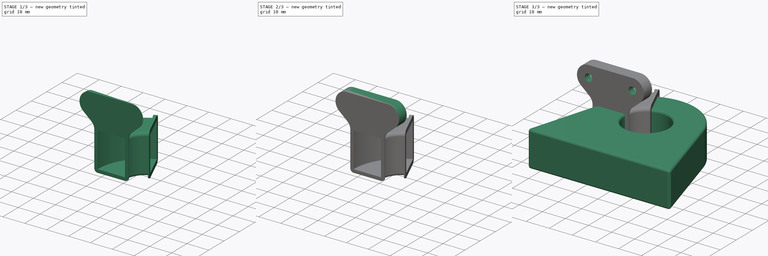
[diagram: build sequence overview — one tinted view per stage of 3, left to right]
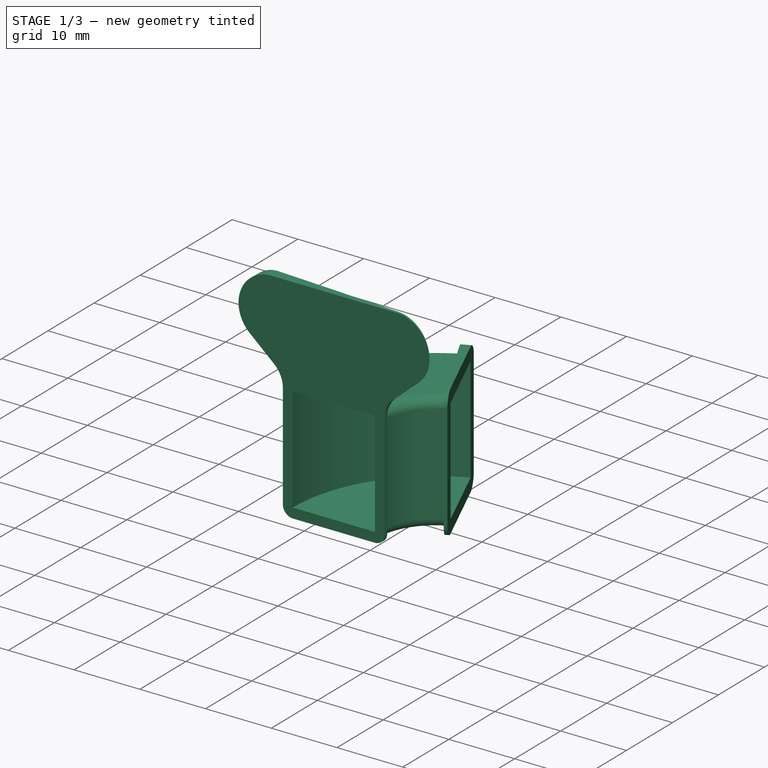
[diagram: stage 1 of 3 — iso view after this stage's code; geometry added in this stage tinted green]
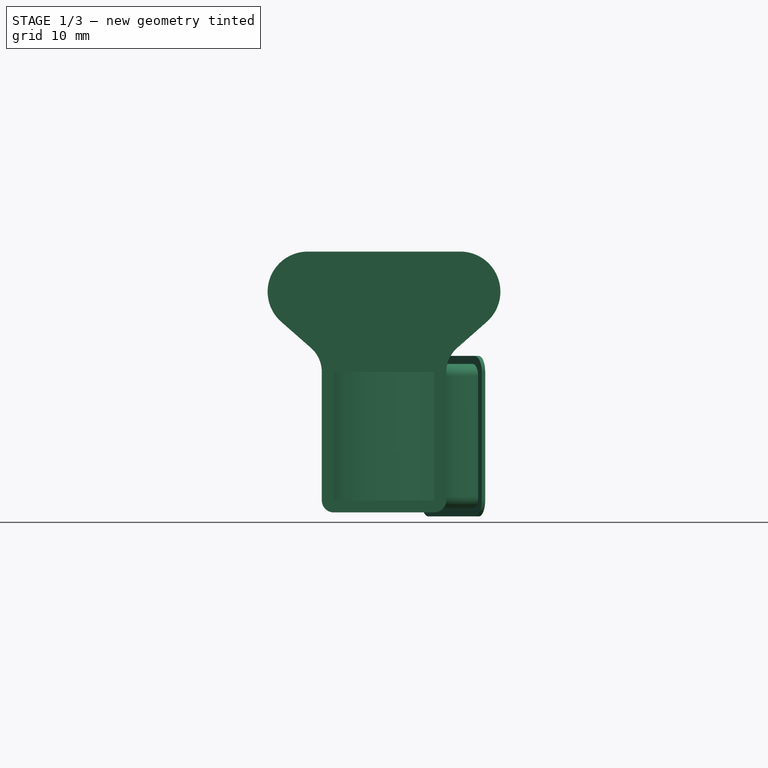
[diagram: stage 1 of 3 — front view after this stage's code; geometry added in this stage tinted green]
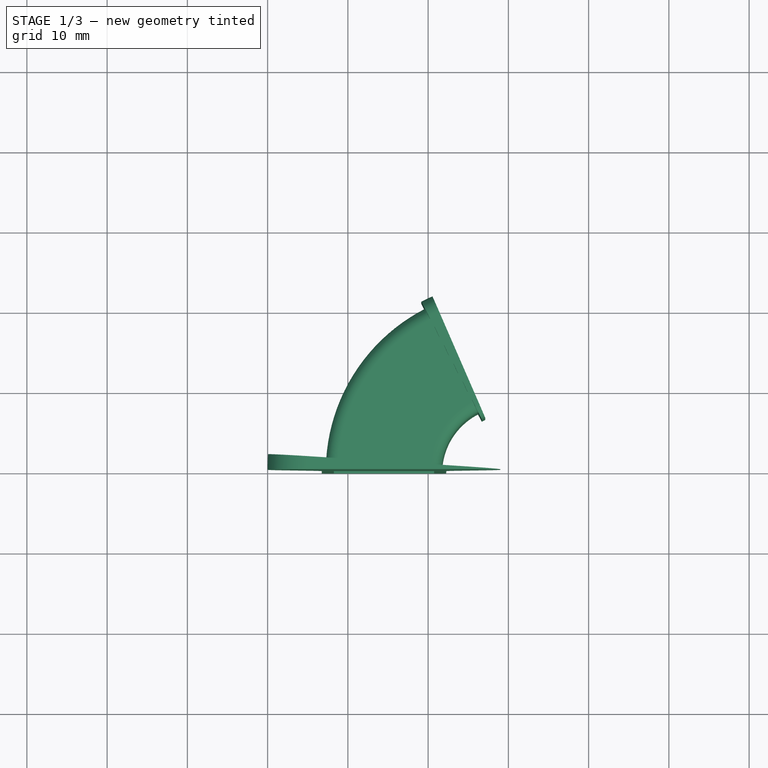
[diagram: stage 1 of 3 — top view after this stage's code; geometry added in this stage tinted green]
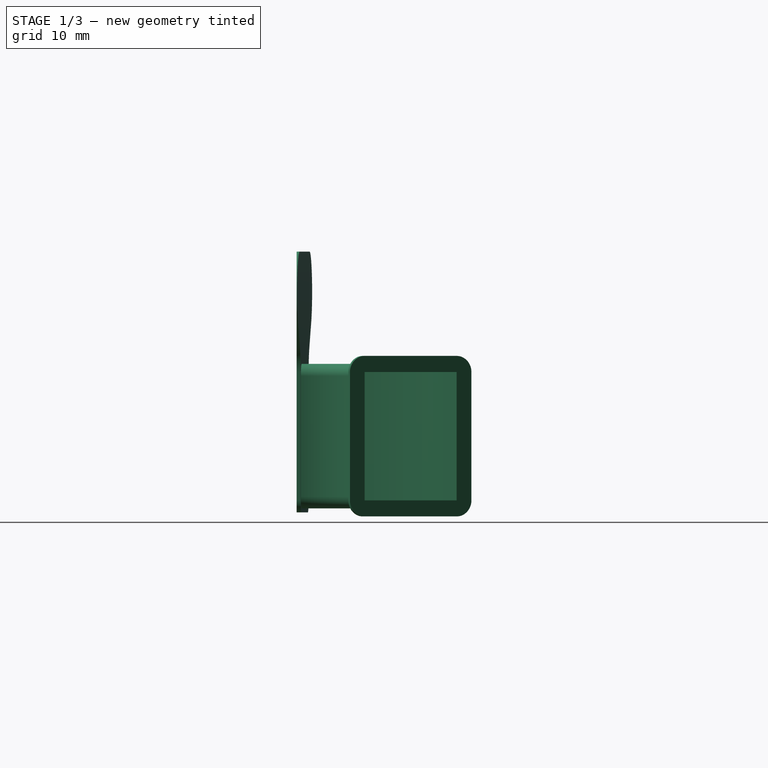
[diagram: stage 1 of 3 — right view after this stage's code; geometry added in this stage tinted green]
FCSTD DOCUMENT  (FreeCAD 1.0R39285 (Git))
Label: current_clamp_coil
License: All rights reserved
LicenseURL: https://en.wikipedia.org/wiki/All_rights_reserved
objects: Sketcher::SketchObject×10, App::Part×3, PartDesign::AdditivePipe×3, PartDesign::Pad×2, PartDesign::Body×2, Part::Feature×2, PartDesign::Pocket×2, PartDesign::Fillet×1
note: 48 computed .brp shape members not serialized (recipe doc carries the construction recipe); baked Part::Feature solids carry a one-line shape summary decoded from their .brp

FEATURE [PartDesign::Body] Body
  AllowCompound = false
  Group = -> [Sketch,Pad,Fillet]
  Origin = -> Origin002
  Tip = -> Fillet
FEATURE [App::Part] Part  label="current_clamp"
  Group = -> [Body]
  Origin = -> Origin
FEATURE [Sketcher::SketchObject] Sketch001  label="SketchBodyDir"
  ArcFitTolerance = 1e-06
  AttachmentSupport = -> [XY_Plane003]
  FullyConstrained = true
  MakeInternals = false
  MapMode = 5
  expr: Constraints[2] = (19 + 12) / 2
  sketch-geometry (1):
    g0: ArcOfCircle CenterX=0 CenterY=0 CenterZ=0 NormalX=0 NormalY=0 NormalZ=1 AngleXU=0 Radius=15.5 StartAngle=1.98072 EndAngle=3.14159
  constraints (4):
    c: Coincident(g0,g-1)
    c: PointOnObject(g0,g-1)
    c: Radius(g0) = 15.5
    c: Distance(g0,g0) = 17
FEATURE [Sketcher::SketchObject] Sketch002  label="SketchBody"
  ArcFitTolerance = 1e-06
  AttachmentSupport = -> [XZ_Plane003]
  ExternalGeometry = -> [Sketch001]
  FullyConstrained = true
  MakeInternals = false
  MapMode = 5
  Placement = pos=(0,0,0) rot=(1,0,0;1.5708rad)
  sketch-geometry (20):
    g0: LineSegment StartX=-21.75 StartY=-8 StartZ=0 EndX=-9.25 EndY=-8 EndZ=0
    g1: LineSegment StartX=-9.25 StartY=-8 StartZ=0 EndX=-9.25 EndY=8 EndZ=0
    g2: LineSegment StartX=-9.25 StartY=8 StartZ=0 EndX=-21.75 EndY=8 EndZ=0
    g3: LineSegment StartX=-21.75 StartY=8 StartZ=0 EndX=-21.75 EndY=-8 EndZ=0
    g4: GeomPoint [constr] X=-15.5 Y=0 Z=0
    g5: GeomPoint [constr] X=-15.5 Y=0 Z=0
    g6: LineSegment StartX=-22.75 StartY=7.5 StartZ=0 EndX=-22.75 EndY=-7.5 EndZ=0
    g7: LineSegment StartX=-21.25 StartY=-9 StartZ=0 EndX=-9.75 EndY=-9 EndZ=0
    g8: LineSegment StartX=-8.25 StartY=-7.5 StartZ=0 EndX=-8.25 EndY=7.5 EndZ=0
    g9: LineSegment StartX=-9.75 StartY=9 StartZ=0 EndX=-21.25 EndY=9 EndZ=0
    g10: ArcOfCircle CenterX=-21.25 CenterY=7.5 CenterZ=0 NormalX=0 NormalY=0 NormalZ=1 AngleXU=0 Radius=1.5 StartAngle=1.5708 EndAngle=3.14159
    g11: ArcOfCircle CenterX=-21.25 CenterY=-7.5 CenterZ=0 NormalX=0 NormalY=0 NormalZ=1 AngleXU=0 Radius=1.5 StartAngle=3.14159 EndAngle=4.71239
    g12: ArcOfCircle CenterX=-9.75 CenterY=-7.5 CenterZ=0 NormalX=0 NormalY=0 NormalZ=1 AngleXU=0 Radius=1.5 StartAngle=4.71239 EndAngle=6.28319
    g13: ArcOfCircle CenterX=-9.75 CenterY=7.5 CenterZ=0 NormalX=0 NormalY=0 NormalZ=1 AngleXU=0 Radius=1.5 StartAngle=0 EndAngle=1.5708
    g14: GeomPoint [constr] X=-22.75 Y=9 Z=0
    g15: GeomPoint [constr] X=-8.25 Y=-9 Z=0
    g16: LineSegment [constr] StartX=-21.25 StartY=-9 StartZ=0 EndX=-21.25 EndY=-8 EndZ=0
    g17: LineSegment [constr] StartX=-22.75 StartY=-7.5 StartZ=0 EndX=-21.75 EndY=-7.5 EndZ=0
    g18: LineSegment [constr] StartX=-9.75 StartY=9 StartZ=0 EndX=-9.75 EndY=8 EndZ=0
    g19: LineSegment [constr] StartX=-8.25 StartY=7.5 StartZ=0 EndX=-9.25 EndY=7.5 EndZ=0
  constraints (49):
    c: Coincident(g0,g1)
    c: Coincident(g1,g2)
    c: Coincident(g2,g3)
    c: Coincident(g3,g0)
    c: Horizontal(g0)
    c: Horizontal(g2)
    c: Vertical(g1)
    c: Vertical(g3)
    c: Symmetric(g2,g0,g4)
    c: Distance(g1,g3) = 12.5
    c: Distance(g0,g2) = 16
    c: Coincident(g4,g-3)
    c: Coincident(g5,g4)
    c: Tangent(g6,g10) = -1.5708
    c: Tangent(g6,g11) = -1.5708
    c: Tangent(g7,g11) = -1.5708
    c: Tangent(g7,g12) = -1.5708
    c: Tangent(g8,g12) = -1.5708
    c: Tangent(g8,g13) = -1.5708
    c: Tangent(g9,g13) = -1.5708
    c: Tangent(g9,g10) = -1.5708
    c: Vertical(g6)
    c: Vertical(g8)
    c: Horizontal(g7)
    c: Horizontal(g9)
    c: Equal(g10,g11)
    c: Equal(g11,g12)
    c: Equal(g12,g13)
    c: PointOnObject(g14,g6)
    c: PointOnObject(g14,g9)
    c: PointOnObject(g15,g7)
    c: PointOnObject(g15,g8)
    c: Coincident(g16,g7)
    c: PointOnObject(g16,g0)
    c: Vertical(g16)
    c: Coincident(g17,g6)
    c: PointOnObject(g17,g3)
    c: Horizontal(g17)
    c: Coincident(g18,g9)
    c: PointOnObject(g18,g2)
    c: Coincident(g19,g8)
    c: PointOnObject(g19,g1)
    c: Horizontal(g19)
    c: Vertical(g18)
    c: Equal(g19,g18)
    c: Equal(g18,g17)
    c: Equal(g17,g16)
    c: Distance(g19,g19) = 1
    c: Radius(g13) = 1.5
FEATURE [PartDesign::AdditivePipe] AdditivePipe
  AuxilleryCurvelinear = true
  AuxillerySpineTangent = false
  Binormal = (0,0,0)
  Mode = 0
  Placement = pos=(0,0,0) rot=(1,0,0;1.5708rad)
  Profile = -> Sketch002
  Refine = true
  Spine = -> Sketch001
  SpineTangent = false
  Suppressed = false
  Transformation = 0
  Transition = 0
FEATURE [Sketcher::SketchObject] Sketch004  label="SketchFaceDir"
  ArcFitTolerance = 1e-06
  AttachmentSupport = -> [XY_Plane003]
  ExternalGeometry = -> [Sketch001]
  FullyConstrained = true
  MakeInternals = false
  MapMode = 5
  sketch-geometry (1):
    g0: ArcOfCircle CenterX=0 CenterY=0 CenterZ=0 NormalX=0 NormalY=0 NormalZ=1 AngleXU=0 Radius=15.5 StartAngle=3.07707 EndAngle=3.14159
  constraints (3):
    c: Coincident(g0,g-1)
    c: Coincident(g0,g-3)
    c: Distance(g0,g0) = 1
FEATURE [Sketcher::SketchObject] Sketch007
  ArcFitTolerance = 1e-06
  AttachmentSupport = -> [AdditivePipe]
  ExternalGeometry = -> [AdditivePipe]
  FullyConstrained = false
  MakeInternals = false
  MapMode = 5
  Placement = pos=(0,0,0) rot=(1,0,0;1.5708rad)
  sketch-geometry (19):
    g0: LineSegment StartX=-21.75 StartY=8 StartZ=0 EndX=-21.75 EndY=-8 EndZ=0
    g1: LineSegment StartX=-21.75 StartY=-8 StartZ=0 EndX=-9.25 EndY=-8 EndZ=0
    g2: LineSegment StartX=-9.25 StartY=-8 StartZ=0 EndX=-9.25 EndY=8 EndZ=0
    g3: LineSegment StartX=-9.25 StartY=8 StartZ=0 EndX=-21.75 EndY=8 EndZ=0
    g4: LineSegment StartX=-21.75 StartY=-9.5 StartZ=0 EndX=-9.25 EndY=-9.5 EndZ=0
    g5: ArcOfCircle CenterX=-21.75 CenterY=-8 CenterZ=0 NormalX=0 NormalY=0 NormalZ=1 AngleXU=0 Radius=1.5 StartAngle=3.14159 EndAngle=4.71239
    g6: ArcOfCircle CenterX=-9.25 CenterY=-8 CenterZ=0 NormalX=0 NormalY=0 NormalZ=1 AngleXU=0 Radius=1.5 StartAngle=4.71239 EndAngle=6.28319
    g7: LineSegment [constr] StartX=-25 StartY=18 StartZ=0 EndX=-6 EndY=18 EndZ=0
    g8: GeomPoint [constr] X=-15.5 Y=18 Z=0
    g9: ArcOfCircle CenterX=-25 CenterY=18 CenterZ=0 NormalX=0 NormalY=0 NormalZ=1 AngleXU=0 Radius=5 StartAngle=1.5708 EndAngle=3.99205
    g10: ArcOfCircle CenterX=-6 CenterY=18 CenterZ=0 NormalX=0 NormalY=0 NormalZ=1 AngleXU=0 Radius=5 StartAngle=5.43273 EndAngle=7.85398
    g11: LineSegment StartX=-25 StartY=23 StartZ=0 EndX=-6 EndY=23 EndZ=0
    g12: LineSegment StartX=-23.25 StartY=-8 StartZ=0 EndX=-23.25 EndY=8 EndZ=0
    g13: LineSegment StartX=-7.75 StartY=-8 StartZ=0 EndX=-7.75 EndY=8 EndZ=0
    g14: ArcOfCircle CenterX=-27.25 CenterY=8 CenterZ=0 NormalX=0 NormalY=0 NormalZ=1 AngleXU=0 Radius=4 StartAngle=0 EndAngle=0.850455
    g15: ArcOfCircle CenterX=-3.75 CenterY=8 CenterZ=0 NormalX=0 NormalY=0 NormalZ=1 AngleXU=0 Radius=4 StartAngle=2.29114 EndAngle=3.14159
    g16: LineSegment StartX=-28.2982 StartY=14.2421 StartZ=0 EndX=-24.6114 EndY=11.0063 EndZ=0
    g17: LineSegment StartX=-6.38856 StartY=11.0063 StartZ=0 EndX=-2.70179 EndY=14.2421 EndZ=0
    g18: GeomPoint X=-15.5 Y=8 Z=0
  constraints (38):
    c: Coincident(g0,g1)
    c: Coincident(g1,g2)
    c: Coincident(g2,g3)
    c: Coincident(g3,g0)
    c: Vertical(g0)
    c: Vertical(g2)
    c: Horizontal(g1)
    c: Horizontal(g3)
    c: Coincident(g0,g-3)
    c: Coincident(g1,g-4)
    c: Tangent(g4,g5) = -1.5708
    c: Tangent(g4,g6) = -1.5708
    c: Horizontal(g4)
    c: Coincident(g6,g1)
    c: Coincident(g5,g0)
    c: Radius(g5) = 1.5
    c: Symmetric(g7,g7,g8)
    c: Horizontal(g11)
    c: Tangent(g11,g9) = 1.5708
    c: Tangent(g11,g10) = 1.5708
    c: Vertical(g12)
    c: Vertical(g13)
    c: Tangent(g17,g10) = -1.5708
    c: Tangent(g17,g15) = 1.5708
    c: Tangent(g15,g13) = 1.5708
    c: Distance(g7,g3) = 10
    c: Tangent(g14,g12) = -1.5708
    c: Tangent(g16,g14) = 1.5708
    c: Tangent(g16,g9) = -1.5708
    c: Equal(g14,g15)
    c: Radius(g14) = 4
    c: Radius(g10) = 5
    c: Symmetric(g3,g3,g18)
    c: Vertical(g18,g8)
    c: Horizontal(g13,g12)
    c: Horizontal(g12,g18)
    c: Tangent(g13,g6) = -1.5708
    c: Tangent(g12,g5) = 1.5708
FEATURE [PartDesign::AdditivePipe] AdditivePipe001
  AuxilleryCurvelinear = true
  AuxillerySpineTangent = false
  BaseFeature = -> AdditivePipe
  Binormal = (0,0,0)
  Mode = 0
  Placement = pos=(0,0,0) rot=(1,0,0;1.5708rad)
  Profile = -> Sketch007
  Refine = true
  Spine = -> Sketch004
  SpineTangent = false
  Suppressed = false
  Transformation = 0
  Transition = 0
FEATURE [Sketcher::SketchObject] Sketch008
  ArcFitTolerance = 1e-06
  AttachmentSupport = -> [XY_Plane003]
  ExternalGeometry = -> [Sketch001]
  FullyConstrained = true
  MakeInternals = false
  MapMode = 5
  sketch-geometry (1):
    g0: ArcOfCircle CenterX=0 CenterY=0 CenterZ=0 NormalX=0 NormalY=0 NormalZ=1 AngleXU=0 Radius=15.5 StartAngle=1.98072 EndAngle=2.04525
  constraints (3):
    c: Coincident(g0,g-1)
    c: Coincident(g0,g-3)
    c: Distance(g0,g0) = 1
FEATURE [Sketcher::SketchObject] Sketch009
  ArcFitTolerance = 1e-06
  AttachmentSupport = -> [AdditivePipe001]
  ExternalGeometry = -> [AdditivePipe001]
  FullyConstrained = true
  MakeInternals = false
  MapMode = 5
  Placement = pos=(8e-16,4e-16,0) rot=(0.699589,0.145433,0.699589;3.43043rad)
  sketch-geometry (14):
    g0: LineSegment StartX=-8 StartY=-23.75 StartZ=0 EndX=8 EndY=-23.75 EndZ=0
    g1: LineSegment StartX=10 StartY=-21.75 StartZ=0 EndX=10 EndY=-9.25 EndZ=0
    g2: LineSegment StartX=8 StartY=-7.25 StartZ=0 EndX=-8 EndY=-7.25 EndZ=0
    g3: LineSegment StartX=-10 StartY=-9.25 StartZ=0 EndX=-10 EndY=-21.75 EndZ=0
    g4: ArcOfCircle CenterX=-8 CenterY=-21.75 CenterZ=0 NormalX=0 NormalY=0 NormalZ=1 AngleXU=0 Radius=2 StartAngle=3.14159 EndAngle=4.71239
    g5: ArcOfCircle CenterX=8 CenterY=-21.75 CenterZ=0 NormalX=0 NormalY=0 NormalZ=1 AngleXU=0 Radius=2 StartAngle=4.71239 EndAngle=6.28319
    g6: ArcOfCircle CenterX=8 CenterY=-9.25 CenterZ=0 NormalX=0 NormalY=0 NormalZ=1 AngleXU=0 Radius=2 StartAngle=0 EndAngle=1.5708
    g7: ArcOfCircle CenterX=-8 CenterY=-9.25 CenterZ=0 NormalX=0 NormalY=0 NormalZ=1 AngleXU=0 Radius=2 StartAngle=1.5708 EndAngle=3.14159
    g8: GeomPoint [constr] X=-10 Y=-23.75 Z=0
    g9: GeomPoint [constr] X=10 Y=-7.25 Z=0
    g10: LineSegment StartX=-8 StartY=-21.75 StartZ=0 EndX=8 EndY=-21.75 EndZ=0
    g11: LineSegment StartX=8 StartY=-21.75 StartZ=0 EndX=8 EndY=-9.25 EndZ=0
    g12: LineSegment StartX=8 StartY=-9.25 StartZ=0 EndX=-8 EndY=-9.25 EndZ=0
    g13: LineSegment StartX=-8 StartY=-9.25 StartZ=0 EndX=-8 EndY=-21.75 EndZ=0
  constraints (32):
    c: Tangent(g0,g4) = -1.5708
    c: Tangent(g0,g5) = -1.5708
    c: Tangent(g1,g5) = -1.5708
    c: Tangent(g1,g6) = -1.5708
    c: Tangent(g2,g6) = -1.5708
    c: Tangent(g2,g7) = -1.5708
    c: Tangent(g3,g7) = -1.5708
    c: Tangent(g3,g4) = -1.5708
    c: Horizontal(g0)
    c: Horizontal(g2)
    c: Vertical(g1)
    c: Vertical(g3)
    c: Equal(g4,g5)
    c: Equal(g5,g6)
    c: Equal(g6,g7)
    c: PointOnObject(g8,g0)
    c: PointOnObject(g8,g3)
    c: PointOnObject(g9,g1)
    c: PointOnObject(g9,g2)
    c: Coincident(g10,g11)
    c: Coincident(g11,g12)
    c: Coincident(g12,g13)
    c: Coincident(g13,g10)
    c: Horizontal(g10)
    c: Horizontal(g12)
    c: Vertical(g11)
    c: Vertical(g13)
    c: Coincident(g10,g-3)
    c: Coincident(g11,g-4)
    c: Coincident(g6,g11)
    c: Coincident(g10,g4)
    c: Radius(g4) = 2
FEATURE [PartDesign::AdditivePipe] AdditivePipe002
  AuxilleryCurvelinear = true
  AuxillerySpineTangent = false
  BaseFeature = -> AdditivePipe001
  Binormal = (0,0,0)
  Mode = 0
  Placement = pos=(0,0,0) rot=(1,0,0;1.5708rad)
  Profile = -> Sketch009
  Refine = true
  Spine = -> Sketch008
  SpineTangent = false
  Suppressed = false
  Transformation = 0
  Transition = 0
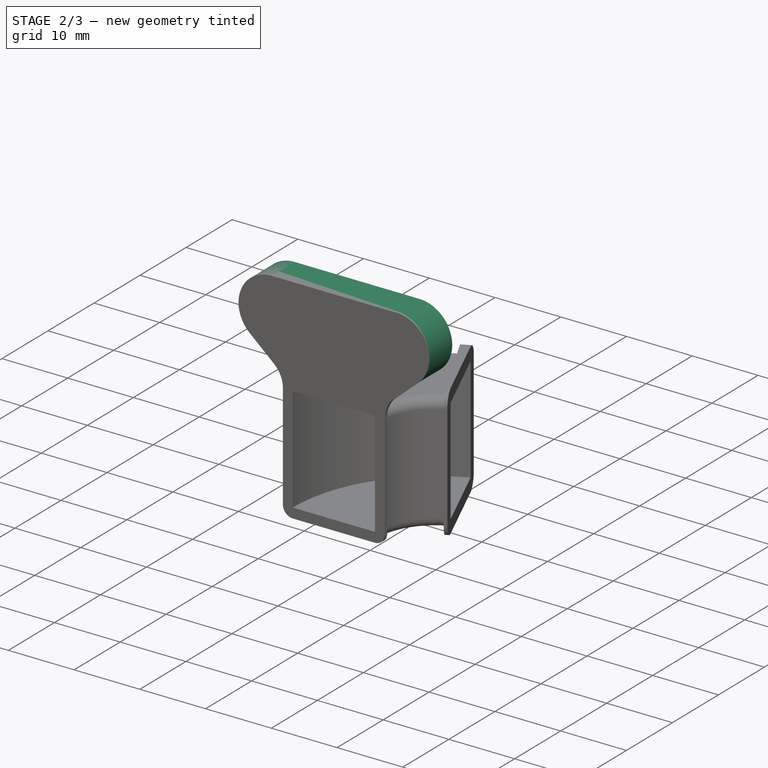
[diagram: stage 2 of 3 — iso view after this stage's code; geometry added in this stage tinted green]
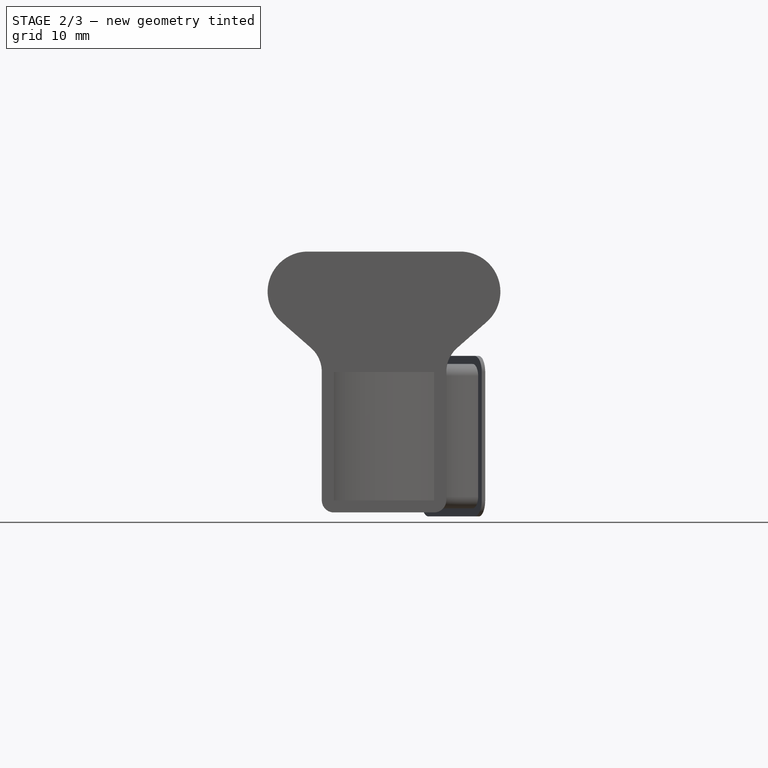
[diagram: stage 2 of 3 — front view after this stage's code; geometry added in this stage tinted green]
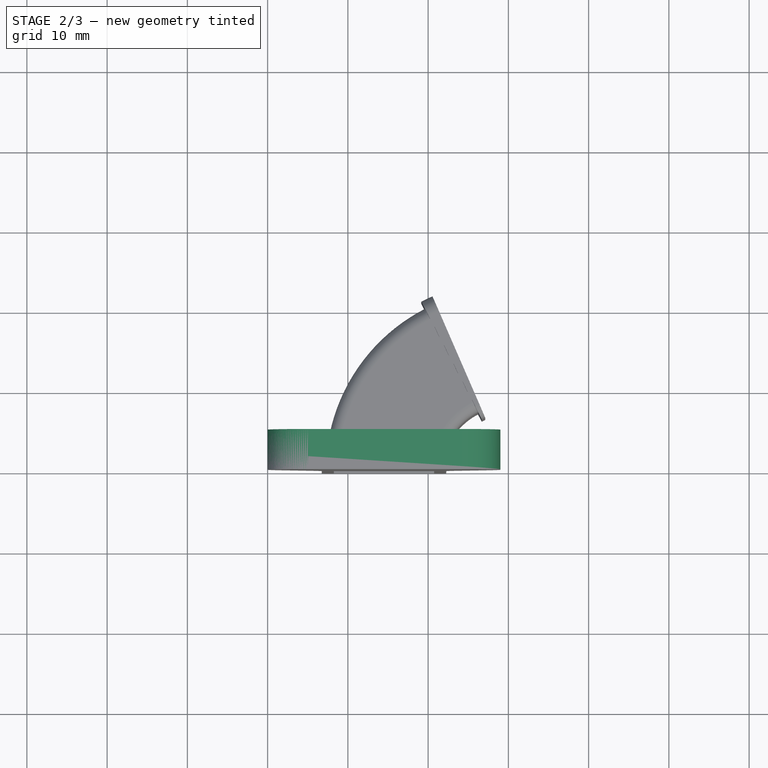
[diagram: stage 2 of 3 — top view after this stage's code; geometry added in this stage tinted green]
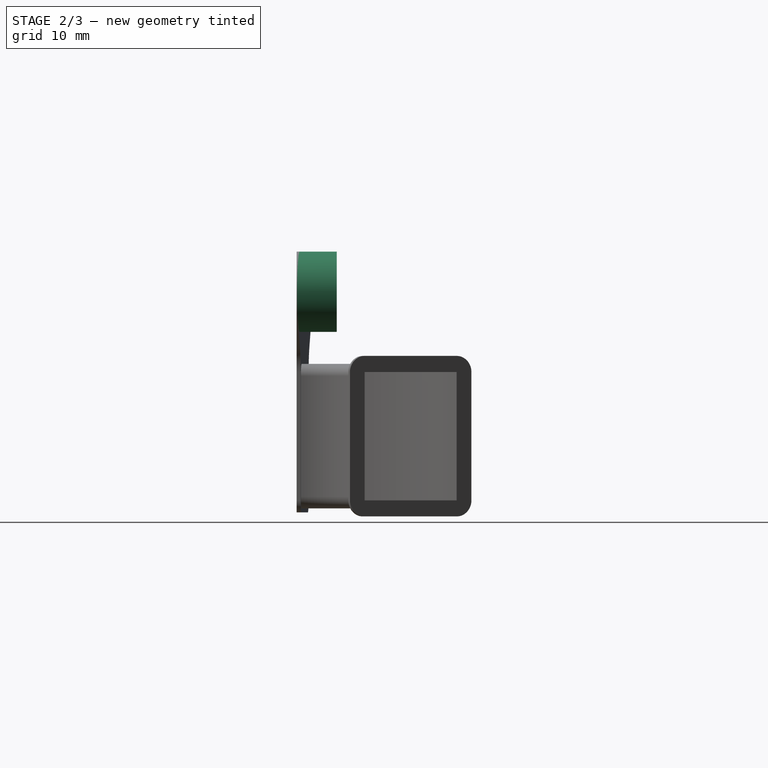
[diagram: stage 2 of 3 — right view after this stage's code; geometry added in this stage tinted green]
FEATURE [Part::Feature] Part__Feature  label="F6072-4_for assembly"
  Placement = pos=(0,-0.508,0) rot=(0,0,1;0rad)
  shape: bbox 4.436 x 16.15 x 4.436 mm, 45 faces (baked)
FEATURE [Part::Feature] Part__Feature001  label="F655"
  shape: bbox 6.395 x 31.65 x 6.395 mm, 74 faces (baked)
FEATURE [App::Part] _55  label="655"
  Group = -> [Part__Feature,Part__Feature001]
  Origin = -> Origin004
FEATURE [Sketcher::SketchObject] Sketch010
  ArcFitTolerance = 1e-06
  AttachmentSupport = -> [AdditivePipe002]
  ExternalGeometry = -> [AdditivePipe002,AdditivePipe001]
  FullyConstrained = true
  MakeInternals = false
  MapMode = 5
  Placement = pos=(0,0,0) rot=(1,0,0;1.5708rad)
  sketch-geometry (4):
    g0: LineSegment StartX=-25 StartY=23 StartZ=0 EndX=-6 EndY=23 EndZ=0
    g1: ArcOfCircle CenterX=-25 CenterY=18 CenterZ=0 NormalX=0 NormalY=0 NormalZ=1 AngleXU=0 Radius=5 StartAngle=1.5708 EndAngle=4.71239
    g2: ArcOfCircle CenterX=-6 CenterY=18 CenterZ=0 NormalX=0 NormalY=0 NormalZ=1 AngleXU=0 Radius=5 StartAngle=4.71239 EndAngle=7.85398
    g3: LineSegment StartX=-25 StartY=13 StartZ=0 EndX=-6 EndY=13 EndZ=0
  constraints (10):
    c: Coincident(g0,g-3)
    c: Coincident(g0,g-3)
    c: Angle(g1) = 3.14159
    c: Coincident(g1,g0)
    c: Angle(g2) = 3.14159
    c: Coincident(g2,g0)
    c: Coincident(g3,g1)
    c: Coincident(g3,g2)
    c: Coincident(g1,g-5)
    c: Coincident(g2,g-4)
FEATURE [PartDesign::Pad] Pad001
  BaseFeature = -> AdditivePipe002
  Direction = (0,-1,2e-16)
  Length = 5
  Length2 = 10
  Placement = pos=(0,0,0) rot=(1,0,0;1.5708rad)
  Profile = -> Sketch010
  ReferenceAxis = -> Sketch010 [N_Axis]
  Reversed = true
  Suppressed = false
  Type = 0
FEATURE [Sketcher::SketchObject] Sketch011
  ArcFitTolerance = 1e-06
  AttachmentSupport = -> [Pad001]
  ExternalGeometry = -> [Pad001]
  FullyConstrained = true
  MakeInternals = false
  MapMode = 5
  Placement = pos=(0,5,0) rot=(-1,0,0;1.5708rad)
  sketch-geometry (14):
    g0: LineSegment StartX=-22.25 StartY=-19.5877 StartZ=0 EndX=-22.25 EndY=-16.4123 EndZ=0
    g1: LineSegment StartX=-22.25 StartY=-16.4123 StartZ=0 EndX=-25 EndY=-14.8246 EndZ=0
    g2: LineSegment StartX=-25 StartY=-14.8246 StartZ=0 EndX=-27.75 EndY=-16.4123 EndZ=0
    g3: LineSegment StartX=-27.75 StartY=-16.4123 StartZ=0 EndX=-27.75 EndY=-19.5877 EndZ=0
    g4: LineSegment StartX=-27.75 StartY=-19.5877 StartZ=0 EndX=-25 EndY=-21.1754 EndZ=0
    g5: LineSegment StartX=-25 StartY=-21.1754 StartZ=0 EndX=-22.25 EndY=-19.5877 EndZ=0
    g6: Circle [constr] CenterX=-25 CenterY=-18 CenterZ=0 NormalX=0 NormalY=0 NormalZ=1 AngleXU=0 Radius=3.17543
    g7: LineSegment StartX=-6 StartY=-21.1754 StartZ=0 EndX=-3.25 EndY=-19.5877 EndZ=0
    g8: LineSegment StartX=-3.25 StartY=-19.5877 StartZ=0 EndX=-3.25 EndY=-16.4123 EndZ=0
    g9: LineSegment StartX=-3.25 StartY=-16.4123 StartZ=0 EndX=-6 EndY=-14.8246 EndZ=0
    g10: LineSegment StartX=-6 StartY=-14.8246 StartZ=0 EndX=-8.75 EndY=-16.4123 EndZ=0
    g11: LineSegment StartX=-8.75 StartY=-16.4123 StartZ=0 EndX=-8.75 EndY=-19.5877 EndZ=0
    g12: LineSegment StartX=-8.75 StartY=-19.5877 StartZ=0 EndX=-6 EndY=-21.1754 EndZ=0
    g13: Circle [constr] CenterX=-6 CenterY=-18 CenterZ=0 NormalX=0 NormalY=0 NormalZ=1 AngleXU=0 Radius=3.17543
  constraints (32):
    c: Coincident(g0,g1)
    c: Coincident(g1,g2)
    c: Coincident(g2,g3)
    c: Coincident(g3,g4)
    c: Coincident(g4,g5)
    c: Coincident(g5,g0)
    c: Equal(g0, g1-g5) x5
    c: PointOnObject(g0,g6)
    c: PointOnObject(g1,g6)
    c: PointOnObject(g2,g6)
    c: PointOnObject(g3,g6)
    c: PointOnObject(g4,g6)
    c: PointOnObject(g5,g6)
    c: Coincident(g7,g8)
    c: Coincident(g8,g9)
    c: Coincident(g9,g10)
    c: Coincident(g10,g11)
    c: Coincident(g11,g12)
    c: Coincident(g12,g7)
    c: Equal(g7, g8-g12) x5
    c: PointOnObject(g7,g13)
    c: PointOnObject(g8,g13)
    c: PointOnObject(g9,g13)
    c: PointOnObject(g10,g13)
    c: PointOnObject(g11,g13)
    c: PointOnObject(g12,g13)
    c: Vertical(g11)
    c: Vertical(g0)
    c: Equal(g1,g9)
    c: DistanceX(g2,g0) = 5.5
    c: Coincident(g-4,g13)
    c: Coincident(g6,g-3)
FEATURE [PartDesign::Pocket] Pocket
  BaseFeature = -> Pad001
  Direction = (0,-1,-2e-16)
  Length = 2
  Length2 = 5
  Placement = pos=(0,0,0) rot=(1,0,0;1.5708rad)
  Profile = -> Sketch011
  ReferenceAxis = -> Sketch011 [N_Axis]
  Suppressed = false
  Type = 0
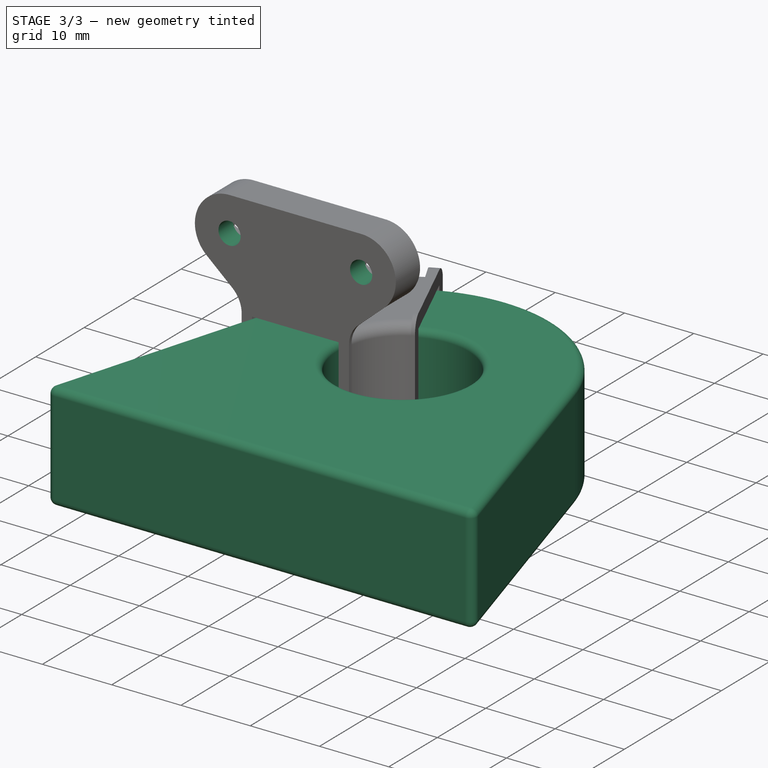
[diagram: stage 3 of 3 — iso view after this stage's code; geometry added in this stage tinted green]
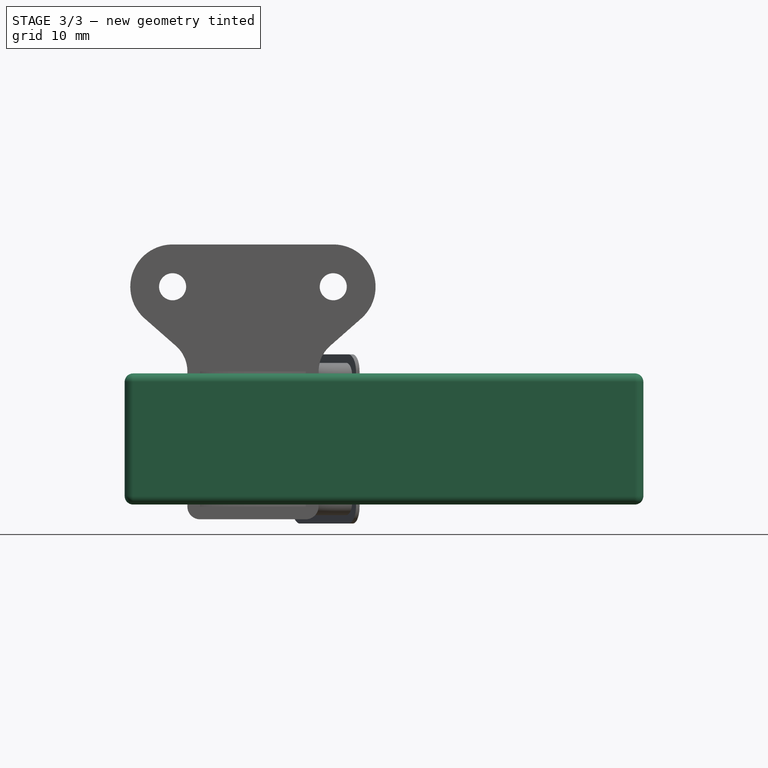
[diagram: stage 3 of 3 — front view after this stage's code; geometry added in this stage tinted green]
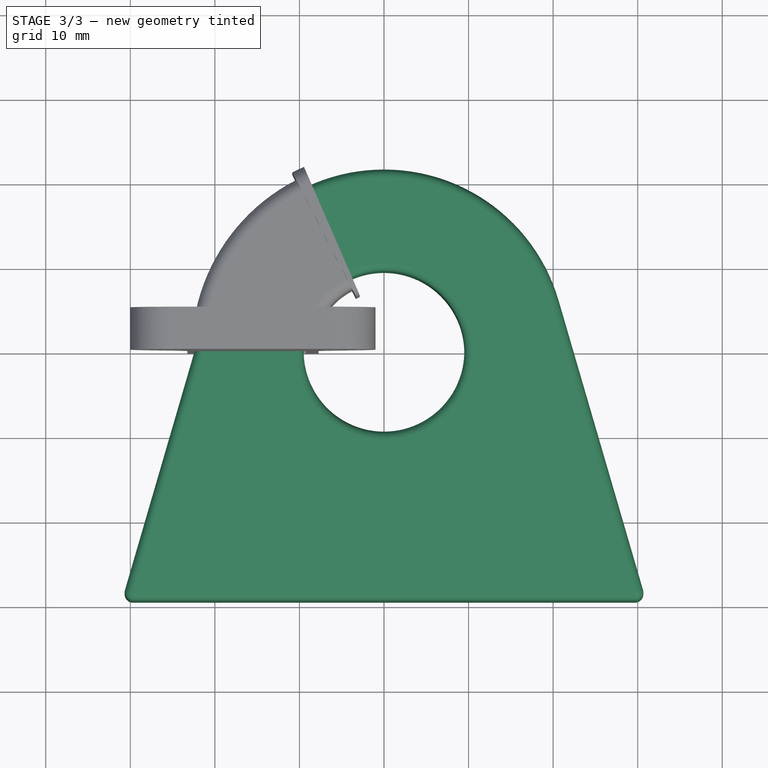
[diagram: stage 3 of 3 — top view after this stage's code; geometry added in this stage tinted green]
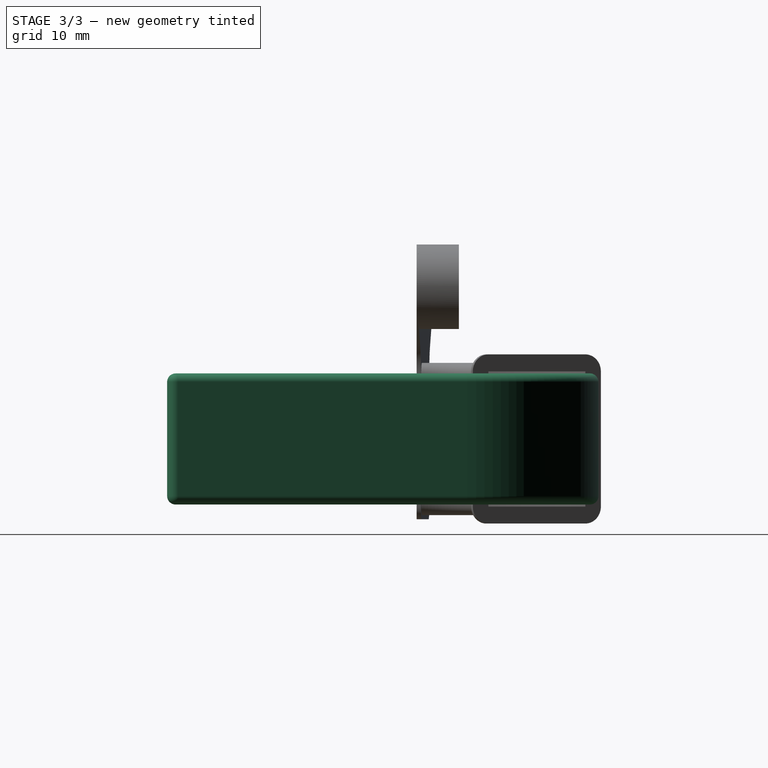
[diagram: stage 3 of 3 — right view after this stage's code; geometry added in this stage tinted green]
FEATURE [Sketcher::SketchObject] Sketch
  ArcFitTolerance = 1e-06
  AttachmentSupport = -> [XY_Plane002]
  FullyConstrained = true
  MakeInternals = false
  MapMode = 5
  sketch-geometry (6):
    g0: Circle CenterX=0 CenterY=0 CenterZ=0 NormalX=0 NormalY=0 NormalZ=1 AngleXU=0 Radius=9.5
    g1: ArcOfCircle CenterX=0 CenterY=0 CenterZ=0 NormalX=0 NormalY=0 NormalZ=1 AngleXU=0 Radius=21.5 StartAngle=0.283794 EndAngle=2.8578
    g2: LineSegment StartX=-20.64 StartY=6.02 StartZ=0 EndX=-31 EndY=-29.5 EndZ=0
    g3: LineSegment StartX=20.64 StartY=6.02 StartZ=0 EndX=31 EndY=-29.5 EndZ=0
    g4: LineSegment StartX=31 StartY=-29.5 StartZ=0 EndX=-31 EndY=-29.5 EndZ=0
    g5: GeomPoint X=0 Y=21.5 Z=0
  constraints (14):
    c: Coincident(g0,g-1)
    c: Coincident(g1,g0)
    c: Coincident(g4,g3)
    c: Coincident(g4,g2)
    c: Horizontal(g4)
    c: Tangent(g2,g1) = -1.5708
    c: Tangent(g3,g1) = 1.5708
    c: Horizontal(g1,g1)
    c: Diameter(g0) = 19
    c: Distance(g0,g1) = 12
    c: DistanceX(g4,g4) = 62
    c: PointOnObject(g5,g1)
    c: PointOnObject(g5,g-2)
    c: Distance(g5,g4) = 51
FEATURE [PartDesign::Pad] Pad
  Direction = (0,0,1)
  Length = 15.5
  Length2 = 10
  Midplane = true
  Profile = -> Sketch
  ReferenceAxis = -> Sketch [N_Axis]
  Refine = true
  Suppressed = false
  Type = 0
FEATURE [PartDesign::Fillet] Fillet
  Base = -> Pad [Edge3]
  BaseFeature = -> Pad
  Radius = 1
  Refine = true
  SupportTransform = false
  Suppressed = false
  UseAllEdges = true
FEATURE [Sketcher::SketchObject] Sketch012
  ArcFitTolerance = 1e-06
  AttachmentSupport = -> [Pocket]
  ExternalGeometry = -> [Pocket]
  FullyConstrained = true
  MakeInternals = false
  MapMode = 5
  Placement = pos=(0,5,0) rot=(-1,0,0;1.5708rad)
  sketch-geometry (2):
    g0: Circle CenterX=-25 CenterY=-18 CenterZ=0 NormalX=0 NormalY=0 NormalZ=1 AngleXU=0 Radius=1.6
    g1: Circle CenterX=-6 CenterY=-18 CenterZ=0 NormalX=0 NormalY=0 NormalZ=1 AngleXU=0 Radius=1.6
  constraints (4):
    c: Coincident(g0,g-3)
    c: Coincident(g1,g-4)
    c: Equal(g1,g0)
    c: Diameter(g0) = 3.2
FEATURE [PartDesign::Pocket] Pocket001
  BaseFeature = -> Pocket
  Direction = (0,-1,-2e-16)
  Length = 5
  Length2 = 5
  Placement = pos=(0,0,0) rot=(1,0,0;1.5708rad)
  Profile = -> Sketch012
  ReferenceAxis = -> Sketch012 [N_Axis]
  Suppressed = false
  Type = 1
FEATURE [PartDesign::Body] Body001
  AllowCompound = false
  Group = -> [Sketch001,Sketch002,AdditivePipe,Sketch004,Sketch007,AdditivePipe001,Sketch008,Sketch009,AdditivePipe002,Sketch010,Pad001,Sketch011,Pocket,Sketch012,Pocket001]
  Origin = -> Origin003
  Tip = -> Pocket001
FEATURE [App::Part] Part001  label="bobbin"
  Group = -> [Body001]
  Origin = -> Origin001
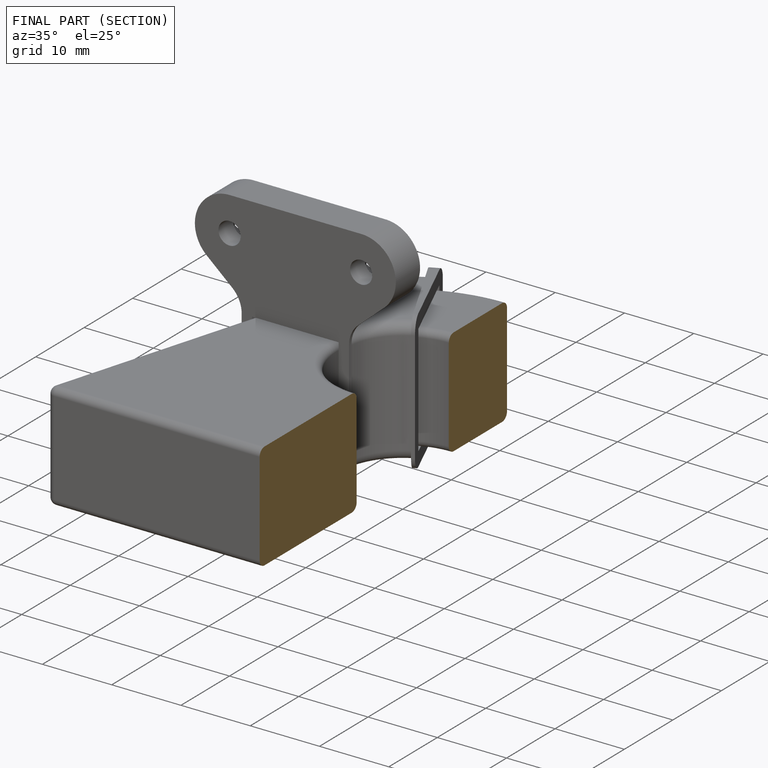
[diagram: finished part — half-section view (interior)]
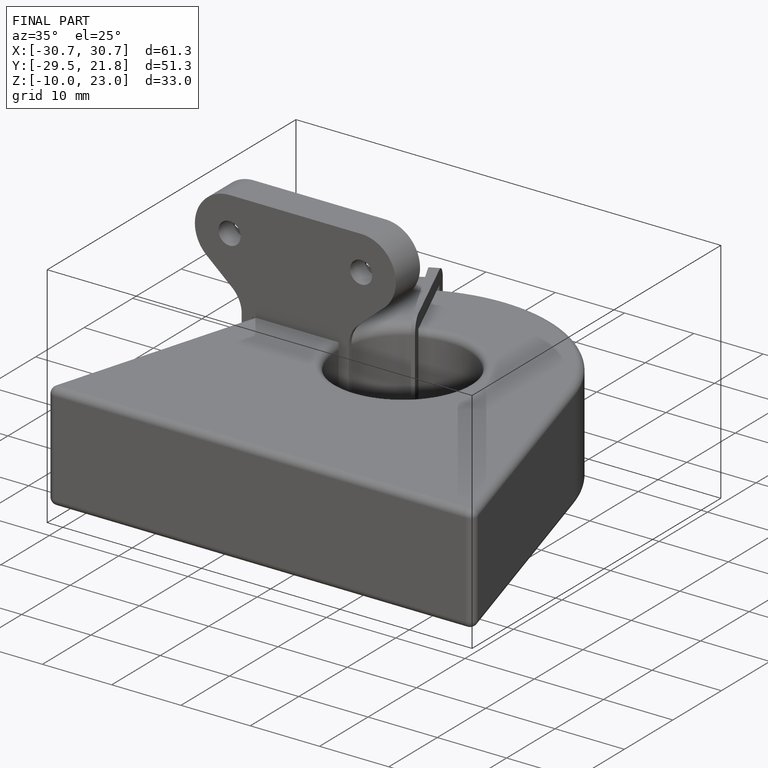
[diagram: finished part — iso view with bounding-box wireframe]
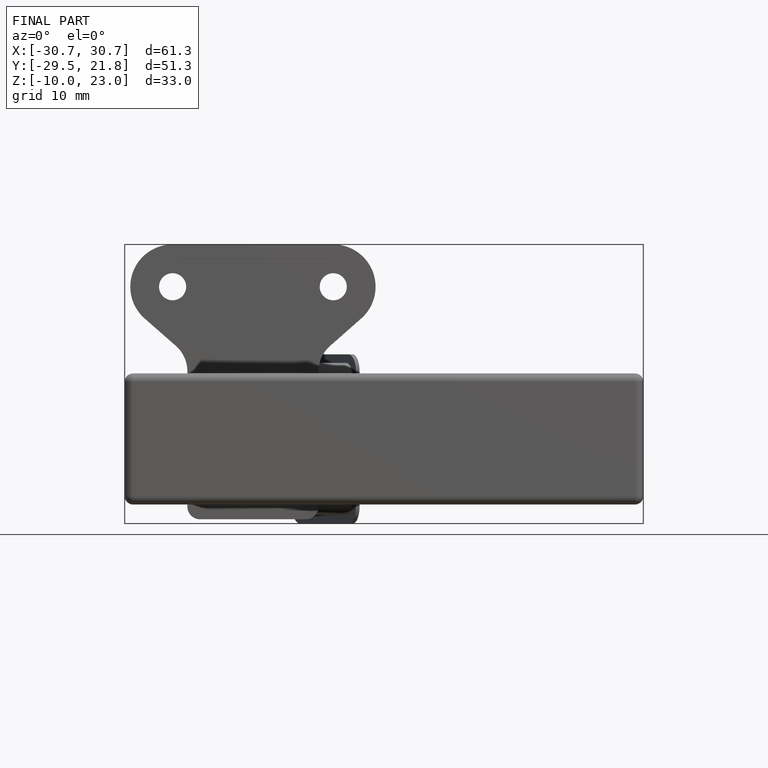
[diagram: finished part — front view with bounding-box wireframe]
